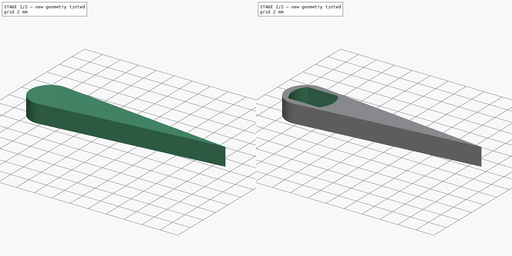
[diagram: build sequence overview — one tinted view per stage of 2, left to right]
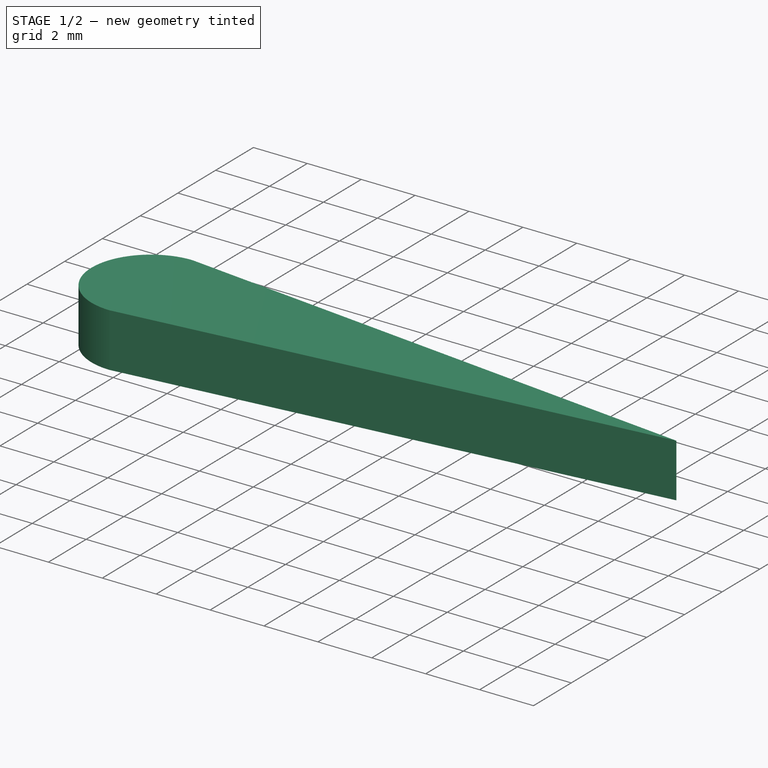
[diagram: stage 1 of 2 — iso view after this stage's code; geometry added in this stage tinted green]
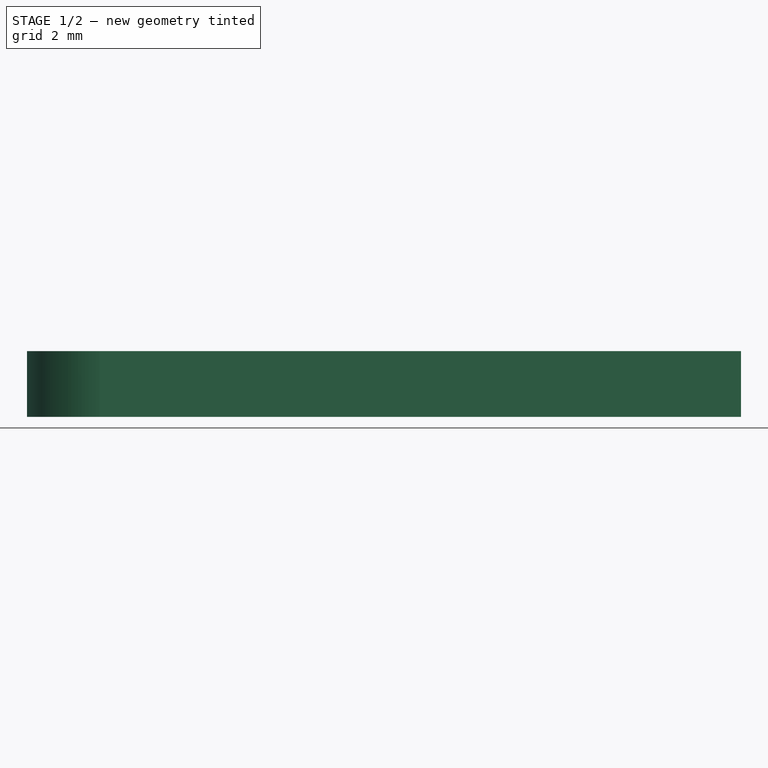
[diagram: stage 1 of 2 — front view after this stage's code; geometry added in this stage tinted green]
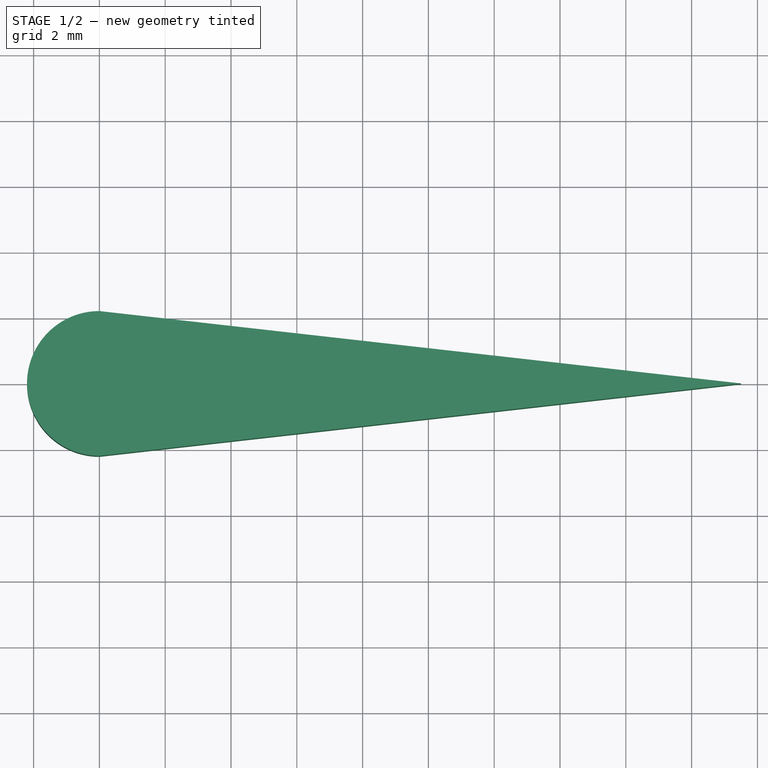
[diagram: stage 1 of 2 — top view after this stage's code; geometry added in this stage tinted green]
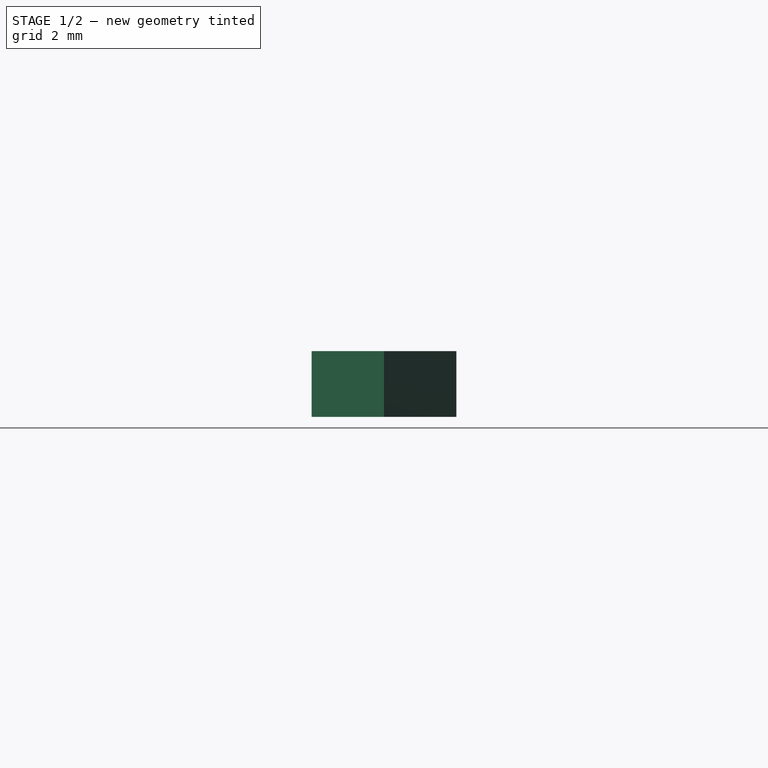
[diagram: stage 1 of 2 — right view after this stage's code; geometry added in this stage tinted green]
FCSTD DOCUMENT  (FreeCAD 0.16R6706 (Git))
Label: Aguja_reloj
License: All rights reserved
LicenseURL: http://en.wikipedia.org/wiki/All_rights_reserved
objects: Sketcher::SketchObject×2, PartDesign::Pad×1, PartDesign::Pocket×1
note: 6 computed .brp shape members not serialized (recipe doc carries the construction recipe); baked Part::Feature solids carry a one-line shape summary decoded from their .brp

FEATURE [Sketcher::SketchObject] Sketch
  Placement = pos=(0,0,0) rot=(-1,0,0;3.14159rad)
  sketch-geometry (3):
    g0: LineSegment StartX=0 StartY=2.2 StartZ=0 EndX=19.5 EndY=0 EndZ=0
    g1: LineSegment StartX=19.5 StartY=0 StartZ=0 EndX=0 EndY=-2.2 EndZ=0
    g2: ArcOfCircle CenterX=0 CenterY=0 CenterZ=0 NormalX=0 NormalY=0 NormalZ=1 Radius=2.2 StartAngle=1.5708 EndAngle=4.71239
  constraints (9):
    c: PointOnObject(g0,g-1)
    c: PointOnObject(g1,g-2)
    c: Coincident(g2,g-1)
    c: Coincident(g2,g0)
    c: PointOnObject(g2,g1)
    c: Coincident(g1,g0)
    c: DistanceX(g-1,g0) = 19.5
    c: Symmetric(g0,g1,g-1)
    c: DistanceY(g-1,g0) = 2.2
FEATURE [PartDesign::Pad] Pad  label="aguja"
  Length = 2
  Length2 = 100
  Placement = pos=(0,0,0) rot=(-1,0,0;3.14159rad)
  Sketch = -> Sketch
  Type = 0
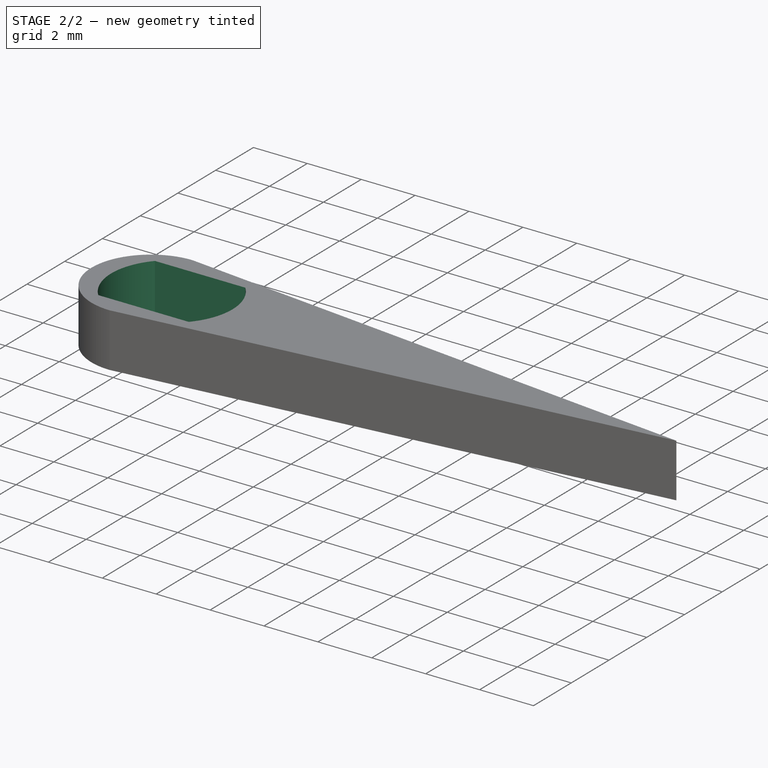
[diagram: stage 2 of 2 — iso view after this stage's code; geometry added in this stage tinted green]
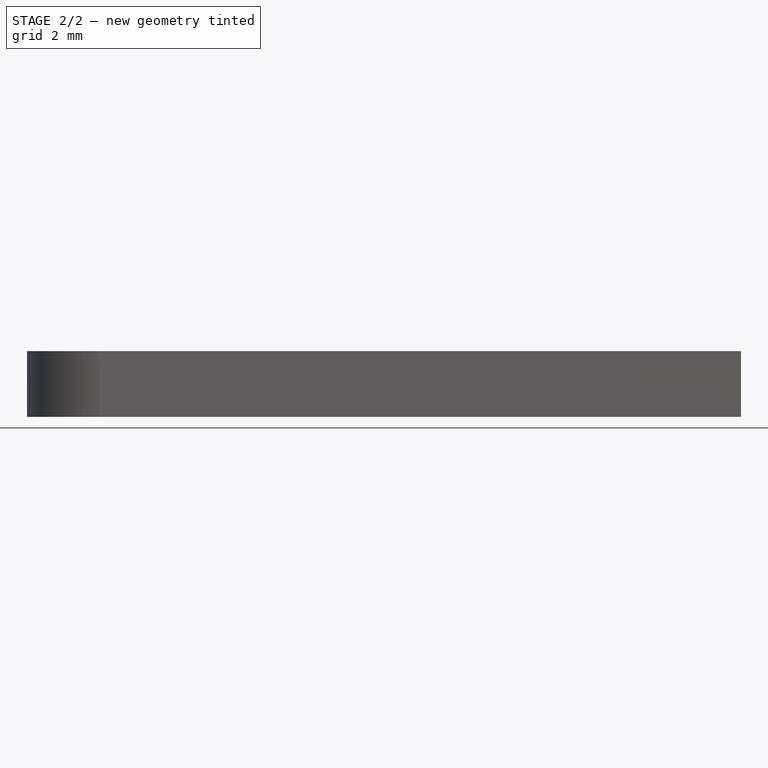
[diagram: stage 2 of 2 — front view after this stage's code; geometry added in this stage tinted green]
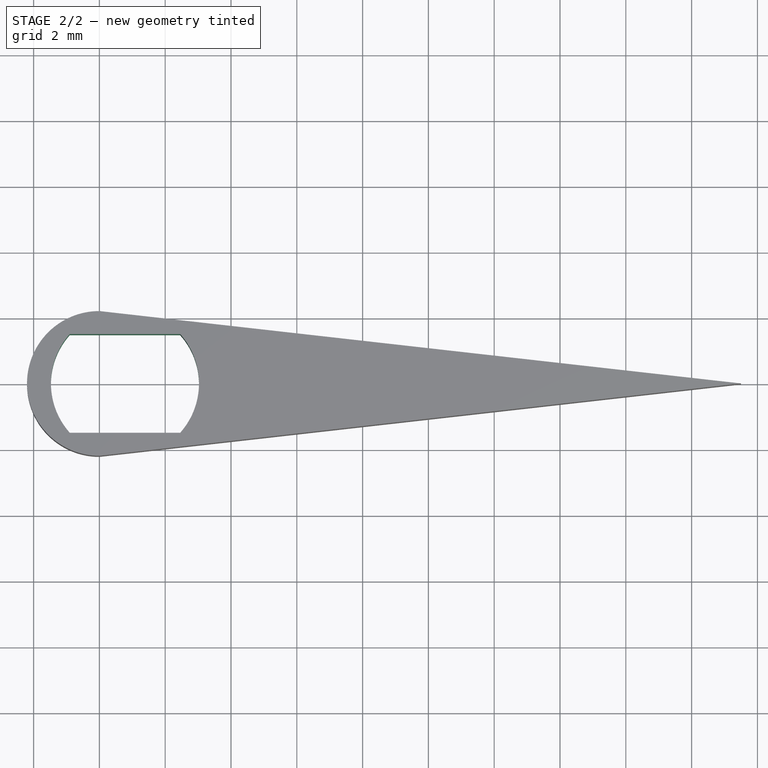
[diagram: stage 2 of 2 — top view after this stage's code; geometry added in this stage tinted green]
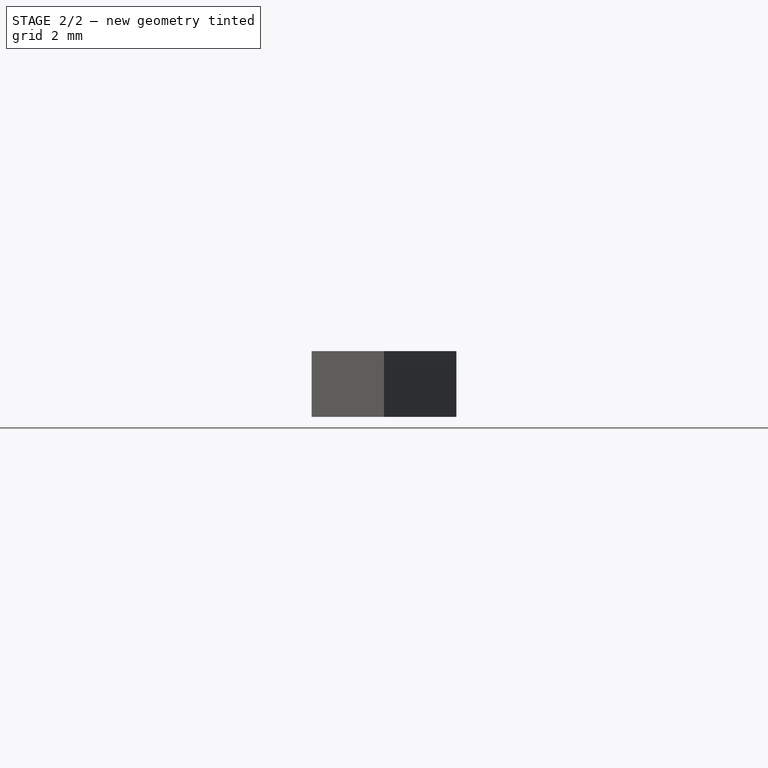
[diagram: stage 2 of 2 — right view after this stage's code; geometry added in this stage tinted green]
FEATURE [Sketcher::SketchObject] Sketch001
  Placement = pos=(0,0,-2) rot=(1,0,0;3.14159rad)
  Support = -> Pad [Face5]
  sketch-geometry (5):
    g0: LineSegment [constr] StartX=0.777285 StartY=1.5 StartZ=0 EndX=0.777285 EndY=-1.5 EndZ=0
    g1: LineSegment StartX=-0.899765 StartY=1.5 StartZ=0 EndX=2.45433 EndY=1.5 EndZ=0
    g2: LineSegment StartX=-0.899765 StartY=-1.5 StartZ=0 EndX=2.45433 EndY=-1.5 EndZ=0
    g3: ArcOfCircle CenterX=0.777285 CenterY=0 CenterZ=0 NormalX=0 NormalY=0 NormalZ=1 Radius=2.25 StartAngle=2.41186 EndAngle=3.87132
    g4: ArcOfCircle CenterX=0.777285 CenterY=0 CenterZ=0 NormalX=0 NormalY=0 NormalZ=1 Radius=2.25 StartAngle=5.55346 EndAngle=7.01291
  constraints (16):
    c: Symmetric(g0,g0,g-1)
    c: DistanceY(g-1,g0) = 1.5
    c: Horizontal(g1)
    c: PointOnObject(g0,g1)
    c: Horizontal(g2)
    c: PointOnObject(g0,g2)
    c: Equal(g3,g4)
    c: Coincident(g3,g4)
    c: Coincident(g1,g4)
    c: Coincident(g1,g3)
    c: Coincident(g2,g3)
    c: Coincident(g2,g4)
    c: DistanceX(g3) = 0.777285
    c: DistanceY(g3) = 0
    c: DistanceX(g0,g1) = 1.67705
    c: Symmetric(g2,g2,g0)
FEATURE [PartDesign::Pocket] Pocket  label="taladro_mot"
  Length = 2
  Placement = pos=(0,0,0) rot=(-1,0,0;3.14159rad)
  Sketch = -> Sketch001
  Type = 0
  UpToFace = -> Pad [Face4]
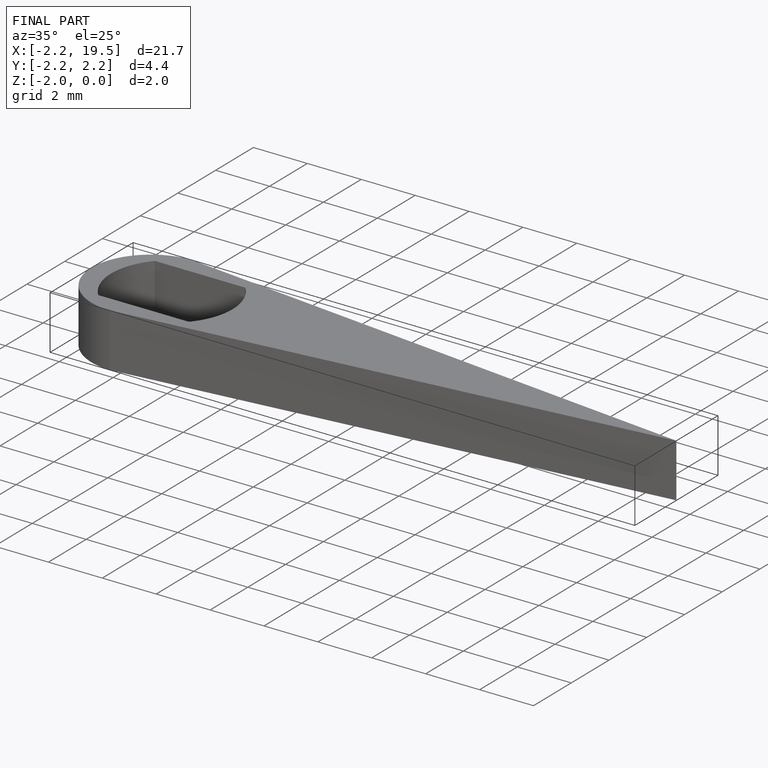
[diagram: finished part — iso view with bounding-box wireframe]
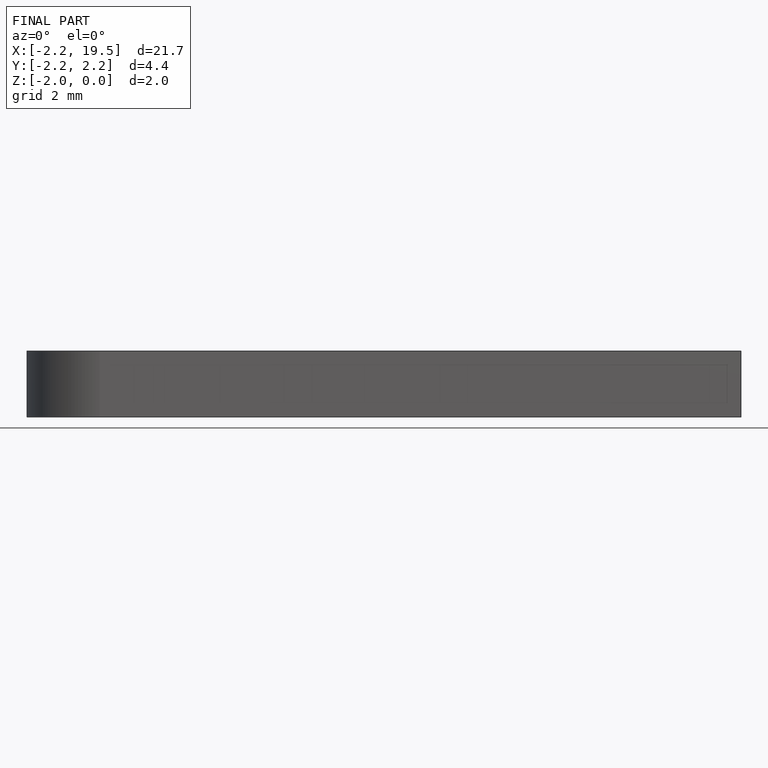
[diagram: finished part — front view with bounding-box wireframe]
